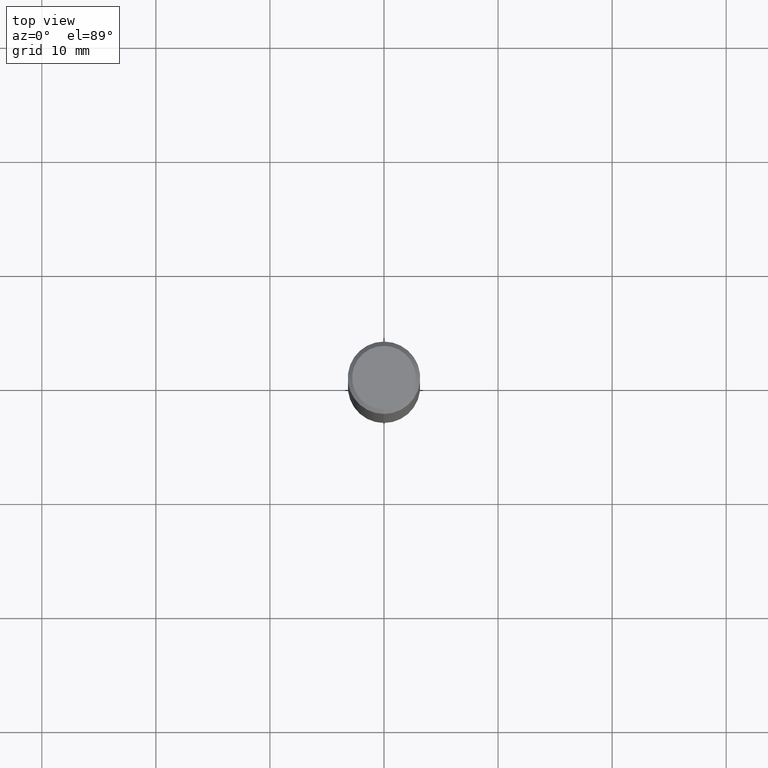
[diagram: clean part render]
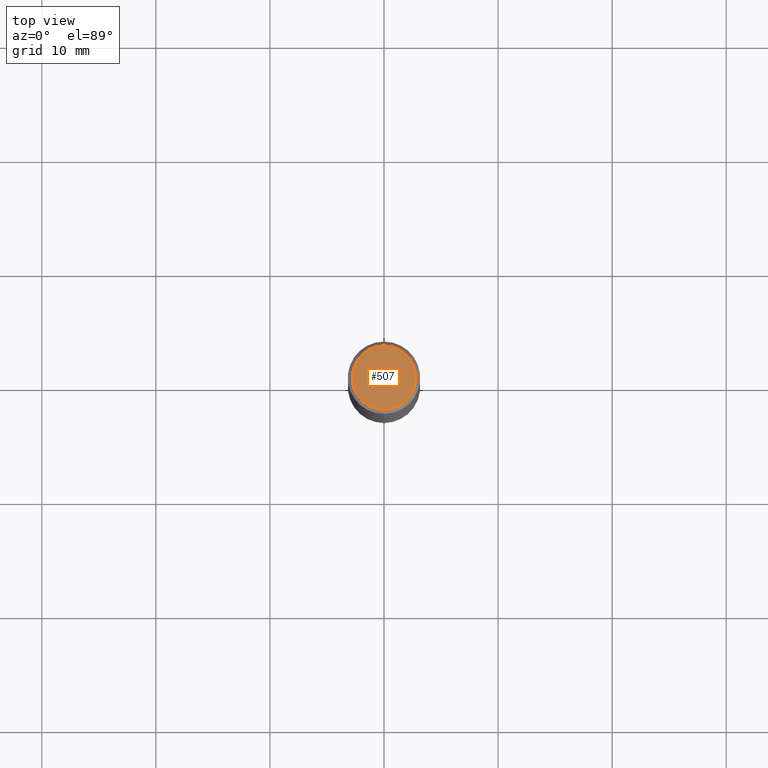
[diagram: same view with one face highlighted and labeled with its STEP entity id]
A machine part, top view. The second image highlights one B-rep face of the part: STEP entity #507.
In plain terms, the highlighted planar face has unit normal (0, -0, -1).
Its self-contained STEP definition (entity closure, byte-faithful):
#71 = ORIENTED_EDGE ( 'NONE', *, *, #245, .T. ) ;
#86 = DIRECTION ( 'NONE',  ( -6.982962677686265922E-15, -1.000000000000000000, 3.491458814188467188E-15 ) ) ;
#110 = CIRCLE ( 'NONE', #234, 0.1100000000000000283 ) ;
#126 = AXIS2_PLACEMENT_3D ( 'NONE', #336, #294, #480 ) ;
#145 = EDGE_LOOP ( 'NONE', ( #71, #474 ) ) ;
#157 = EDGE_CURVE ( 'NONE', #243, #276, #206, .T. ) ;
#175 = FACE_OUTER_BOUND ( 'NONE', #145, .T. ) ;
#206 = CIRCLE ( 'NONE', #401, 0.1100000000000000283 ) ;
#234 = AXIS2_PLACEMENT_3D ( 'NONE', #335, #293, #387 ) ;
#243 = VERTEX_POINT ( 'NONE', #300 ) ;
#245 = EDGE_CURVE ( 'NONE', #276, #243, #110, .T. ) ;
#276 = VERTEX_POINT ( 'NONE', #453 ) ;
#293 = DIRECTION ( 'NONE',  ( -2.445484535067431049E-29, 3.491458814188467583E-15, 1.000000000000000000 ) ) ;
#294 = DIRECTION ( 'NONE',  ( 2.445484535067431049E-29, -3.491458814188467188E-15, -1.000000000000000000 ) ) ;
#300 = CARTESIAN_POINT ( 'NONE',  ( -8.061085147381547495E-16, -0.1100000000000000283, 3.838978928193412689E-16 ) ) ;
#330 = PLANE ( 'NONE',  #126 ) ;
#335 = CARTESIAN_POINT ( 'NONE',  ( 3.975789068314252337E-48, -5.676299967089012762E-34, -1.625767413902138821E-19 ) ) ;
#336 = CARTESIAN_POINT ( 'NONE',  ( 7.681258945454894762E-16, 0.1100000000000000283, -3.841417579314265946E-16 ) ) ;
#387 = DIRECTION ( 'NONE',  ( -6.982962677686265922E-15, -1.000000000000000000, 3.491458814188467188E-15 ) ) ;
#401 = AXIS2_PLACEMENT_3D ( 'NONE', #406, #437, #86 ) ;
#406 = CARTESIAN_POINT ( 'NONE',  ( 3.975789068314252337E-48, -5.676299967089012762E-34, -1.625767413902138821E-19 ) ) ;
#437 = DIRECTION ( 'NONE',  ( -2.445484535067431049E-29, 3.491458814188467583E-15, 1.000000000000000000 ) ) ;
#453 = CARTESIAN_POINT ( 'NONE',  ( 8.204981146281365554E-16, 0.1100000000000000283, -3.842230463021216703E-16 ) ) ;
#474 = ORIENTED_EDGE ( 'NONE', *, *, #157, .T. ) ;
#480 = DIRECTION ( 'NONE',  ( 6.982962677686265922E-15, 1.000000000000000000, -3.491458814188467188E-15 ) ) ;
#507 = ADVANCED_FACE ( 'NONE', ( #175 ), #330, .F. ) ;